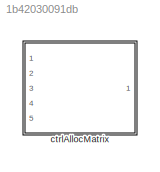
MODEL slx_1b42030091db
KIND library
CONFIG AbsTol = auto
CONFIG EnableMultiTasking = off
CONFIG FixedStep = auto
CONFIG MaxStep = auto
CONFIG MinStep = auto
CONFIG RelTol = 1e-3
CONFIG SampleTimeConstraint = Unconstrained
CONFIG Solver = VariableStepAuto
CONFIG SolverName = VariableStepAuto
CONFIG StartTime = 0.0
CONFIG StopTime = 10.0
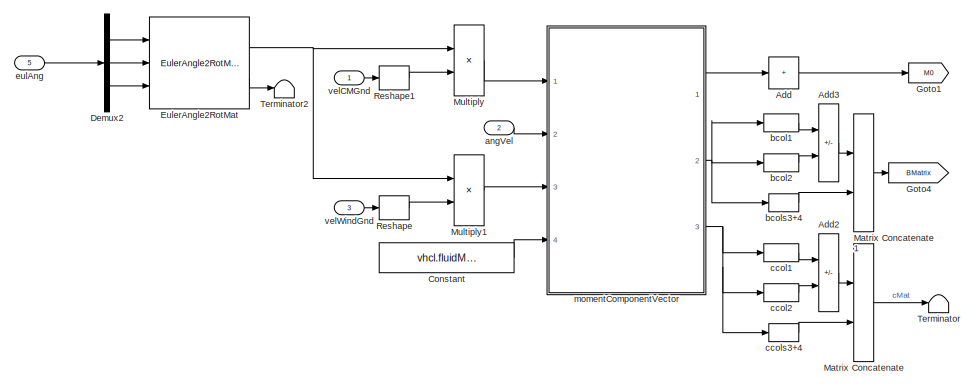
[diagram: ctrlAllocMatrix - part 1/2, left side, full height]
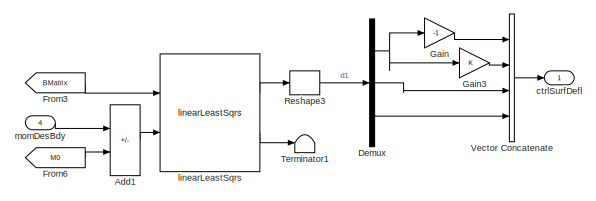
[diagram: ctrlAllocMatrix - part 2/2, middle right region]
BLOCK [SubSystem] ctrlAllocMatrix
  MinAlgLoopOccurrences = on
  Ports = [5, 1]
  RequestExecContextInheritance = off
BLOCK [Sum] ctrlAllocMatrix/Add
  CollapseDim = 2
  CollapseMode = Specified dimension
  IconShape = rectangular
  Inputs = +
  Ports = [1, 1]
BLOCK [Sum] ctrlAllocMatrix/Add1
  IconShape = rectangular
  Inputs = +-
  Ports = [2, 1]
BLOCK [Sum] ctrlAllocMatrix/Add2
  IconShape = rectangular
  Inputs = -+
  Ports = [2, 1]
BLOCK [Sum] ctrlAllocMatrix/Add3
  IconShape = rectangular
  Inputs = -+
  Ports = [2, 1]
BLOCK [Constant] ctrlAllocMatrix/Constant
  Value = vhcl.fluidMomentArms.Value
BLOCK [Demux] ctrlAllocMatrix/Demux
  Outputs = 3
  Ports = [1, 3]
BLOCK [Demux] ctrlAllocMatrix/Demux2
  Outputs = 3
  Ports = [1, 3]
BLOCK [Reference] ctrlAllocMatrix/EulerAngle2RotMat  REF=eulAng2RotMat_ul/EulerAngle2RotMat
  Ports = [3, 2]
  SourceBlock = eulAng2RotMat_ul/EulerAngle2RotMat
  SourceType = SubSystem
BLOCK [From] ctrlAllocMatrix/From3
  GotoTag = BMatrix
BLOCK [From] ctrlAllocMatrix/From6
  GotoTag = M0
BLOCK [Gain] ctrlAllocMatrix/Gain
  Gain = -1
BLOCK [Gain] ctrlAllocMatrix/Gain3
BLOCK [Goto] ctrlAllocMatrix/Goto1
  GotoTag = M0
BLOCK [Goto] ctrlAllocMatrix/Goto4
  GotoTag = BMatrix
BLOCK [Concatenate] ctrlAllocMatrix/Matrix Concatenate
  ConcatenateDimension = 2
  Mode = Multidimensional array
  Ports = [2, 1]
BLOCK [Concatenate] ctrlAllocMatrix/Matrix Concatenate1
  ConcatenateDimension = 2
  Mode = Multidimensional array
  Ports = [2, 1]
BLOCK [Product] ctrlAllocMatrix/Multiply
  Multiplication = Matrix(*)
  Ports = [2, 1]
BLOCK [Product] ctrlAllocMatrix/Multiply1
  Multiplication = Matrix(*)
  Ports = [2, 1]
BLOCK [Reshape] ctrlAllocMatrix/Reshape
  OutputDimensionality = Column vector (2-D)
  Ports = [1, 1]
BLOCK [Reshape] ctrlAllocMatrix/Reshape1
  OutputDimensionality = Column vector (2-D)
  Ports = [1, 1]
BLOCK [Reshape] ctrlAllocMatrix/Reshape3
  Ports = [1, 1]
BLOCK [Terminator] ctrlAllocMatrix/Terminator
BLOCK [Terminator] ctrlAllocMatrix/Terminator1
BLOCK [Terminator] ctrlAllocMatrix/Terminator2
BLOCK [Concatenate] ctrlAllocMatrix/Vector Concatenate
  NumInputs = 4
  Ports = [4, 1]
BLOCK [Inport] ctrlAllocMatrix/angVel
  Port = 2
BLOCK [Selector] ctrlAllocMatrix/bcol1
  IndexOptions = Select all,Index vector (dialog)
  Indices = [1 3],1
  InputPortWidth = 3
  NumberOfDimensions = 2
  OutputSizes = 1,1
  Ports = [1, 1]
BLOCK [Selector] ctrlAllocMatrix/bcol2
  IndexOptions = Select all,Index vector (dialog)
  Indices = [1 3],2
  InputPortWidth = 3
  NumberOfDimensions = 2
  OutputSizes = 1,1
  Ports = [1, 1]
BLOCK [Selector] ctrlAllocMatrix/bcols3+4
  IndexOptions = Select all,Index vector (dialog)
  Indices = [1 3],[3 4]
  InputPortWidth = 3
  NumberOfDimensions = 2
  OutputSizes = 1,1
  Ports = [1, 1]
BLOCK [Selector] ctrlAllocMatrix/ccol1
  IndexOptions = Select all,Index vector (dialog)
  Indices = [1 3],1
  InputPortWidth = 3
  NumberOfDimensions = 2
  OutputSizes = 1,1
  Ports = [1, 1]
BLOCK [Selector] ctrlAllocMatrix/ccol2
  IndexOptions = Select all,Index vector (dialog)
  Indices = [1 3],2
  InputPortWidth = 3
  NumberOfDimensions = 2
  OutputSizes = 1,1
  Ports = [1, 1]
BLOCK [Selector] ctrlAllocMatrix/ccols3+4
  IndexOptions = Select all,Index vector (dialog)
  Indices = [1 3],[3 4]
  InputPortWidth = 3
  NumberOfDimensions = 2
  OutputSizes = 1,1
  Ports = [1, 1]
BLOCK [Outport] ctrlAllocMatrix/ctrlSurfDefl
  VectorParamsAs1DForOutWhenUnconnected = off
BLOCK [Inport] ctrlAllocMatrix/eulAng
  Port = 5
BLOCK [Reference] ctrlAllocMatrix/linearLeastSqrs  REF=linearLeastSqrs_ul/linearLeastSqrs
  Ports = [2, 2]
  SourceBlock = linearLeastSqrs_ul/linearLeastSqrs
  SourceType = SubSystem
BLOCK [Inport] ctrlAllocMatrix/momDesBdy
  Port = 4
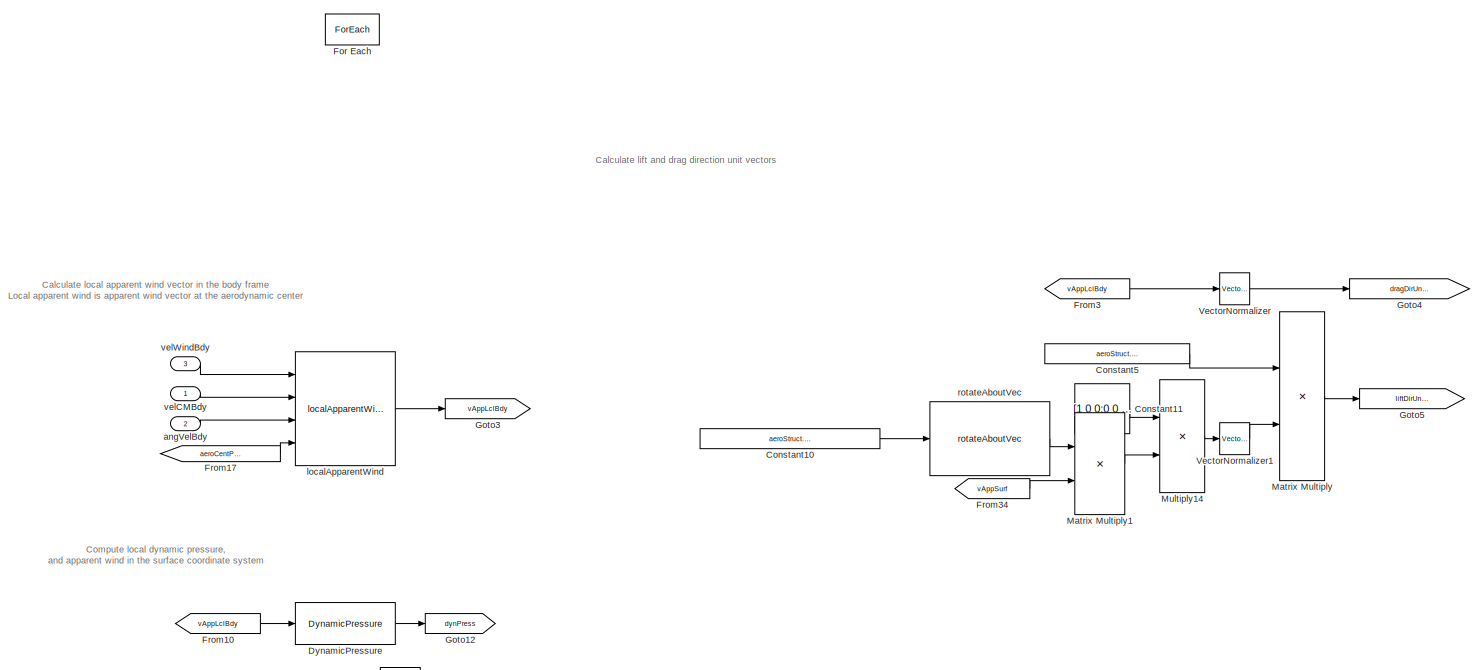
[diagram: ctrlAllocMatrix/momentComponentVector - part 1/4, top center region]
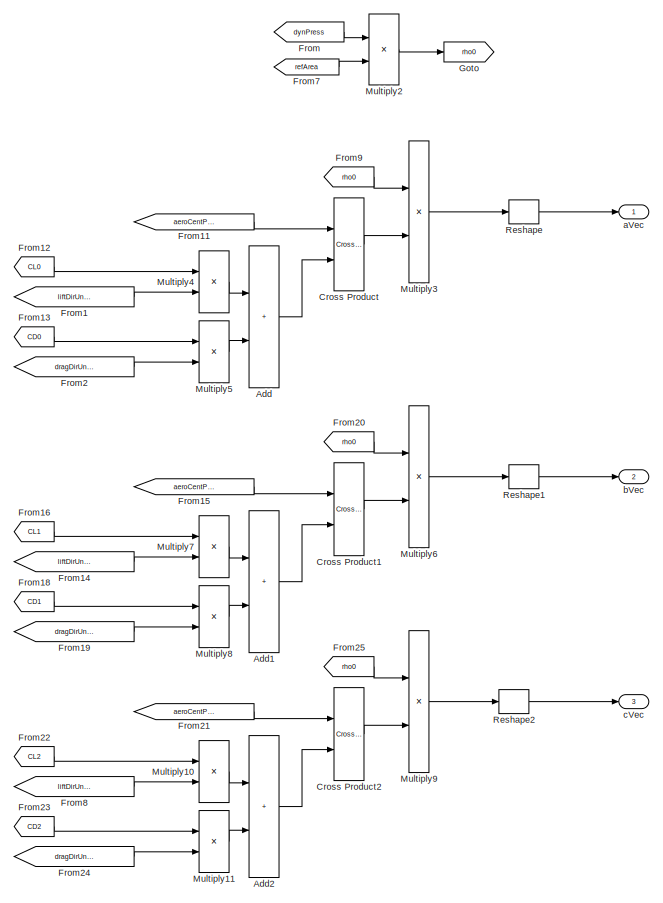
[diagram: ctrlAllocMatrix/momentComponentVector - part 2/4, middle right region]
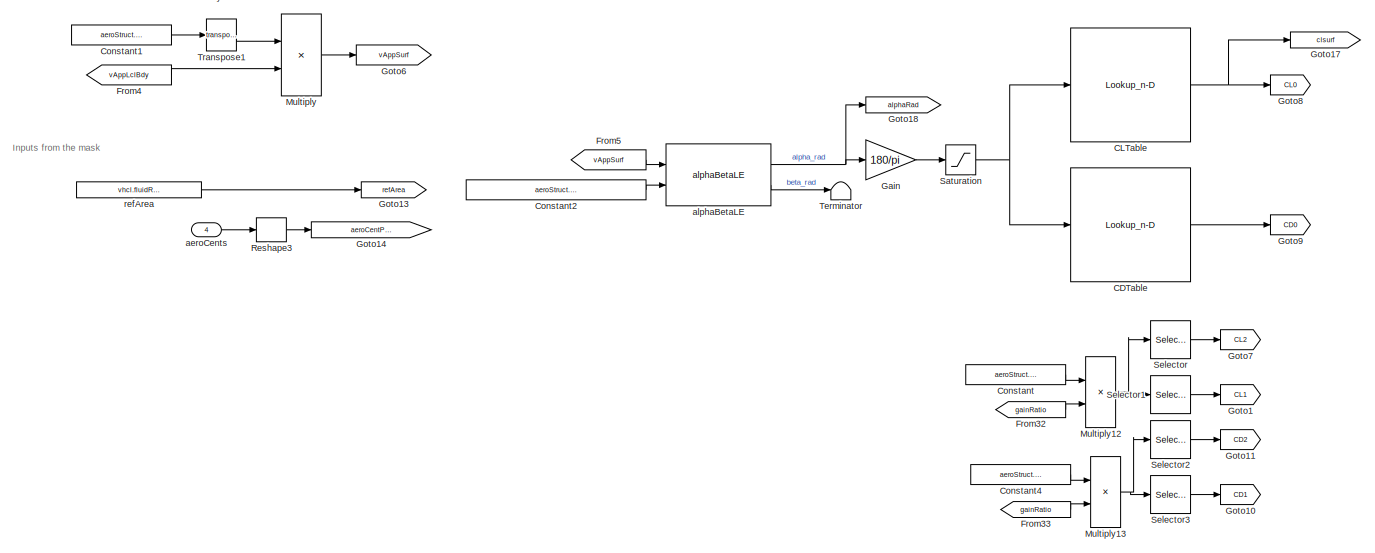
[diagram: ctrlAllocMatrix/momentComponentVector - part 3/4, central region]
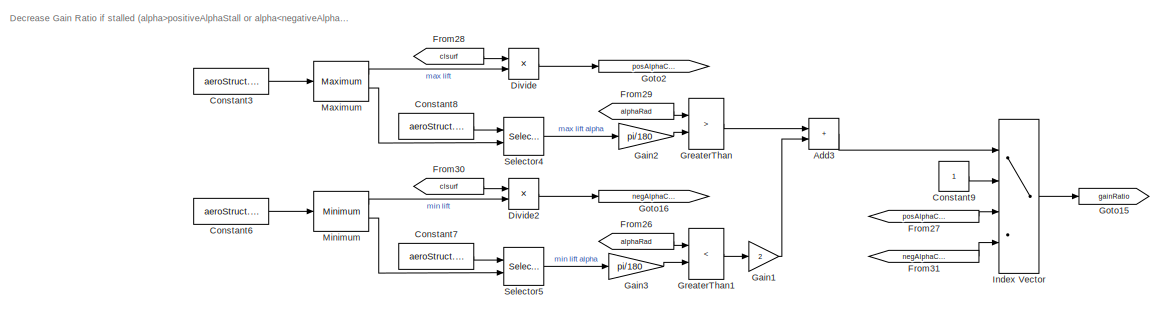
[diagram: ctrlAllocMatrix/momentComponentVector - part 4/4, bottom right region]
BLOCK [SubSystem] ctrlAllocMatrix/momentComponentVector
  Ports = [4, 3]
  RequestExecContextInheritance = off
BLOCK [Sum] ctrlAllocMatrix/momentComponentVector/Add
  IconShape = rectangular
  Ports = [2, 1]
BLOCK [Sum] ctrlAllocMatrix/momentComponentVector/Add1
  IconShape = rectangular
  Ports = [2, 1]
BLOCK [Sum] ctrlAllocMatrix/momentComponentVector/Add2
  IconShape = rectangular
  Ports = [2, 1]
BLOCK [Sum] ctrlAllocMatrix/momentComponentVector/Add3
  IconShape = rectangular
  Ports = [2, 1]
BLOCK [Lookup_n-D] ctrlAllocMatrix/momentComponentVector/CDTable
  BreakpointsForDimension1 = aeroStruct.alpha
  ExtrapMethod = Clip
  InternalRulePriority = Speed
  LookupTableObject = CLTable
  NumberOfTableDimensions = 1
  Ports = [1, 1]
  RndMeth = Simplest
  Table = aeroStruct.CD
  UseLastTableValue = on
BLOCK [Lookup_n-D] ctrlAllocMatrix/momentComponentVector/CLTable
  BreakpointsForDimension1 = aeroStruct.alpha
  ExtrapMethod = Clip
  InternalRulePriority = Speed
  LookupTableObject = CLTable
  NumberOfTableDimensions = 1
  Ports = [1, 1]
  RndMeth = Simplest
  Table = aeroStruct.CL
  UseLastTableValue = on
BLOCK [Constant] ctrlAllocMatrix/momentComponentVector/Constant
  NameLocation = top
  Value = aeroStruct.gainCL
BLOCK [Constant] ctrlAllocMatrix/momentComponentVector/Constant1
  Value = aeroStruct.RSurf2Bdy
BLOCK [Constant] ctrlAllocMatrix/momentComponentVector/Constant10
  Value = aeroStruct.incAlphaUnitVecSurf
BLOCK [Constant] ctrlAllocMatrix/momentComponentVector/Constant11
  Value = [1 0 0;0 0 0;0 0 1]
BLOCK [Constant] ctrlAllocMatrix/momentComponentVector/Constant2
  Value = aeroStruct.incAlphaUnitVecSurf
BLOCK [Constant] ctrlAllocMatrix/momentComponentVector/Constant3
  Value = aeroStruct.CL
BLOCK [Constant] ctrlAllocMatrix/momentComponentVector/Constant4
  NameLocation = top
  Value = aeroStruct.gainCD
BLOCK [Constant] ctrlAllocMatrix/momentComponentVector/Constant5
  Value = aeroStruct.RSurf2Bdy
BLOCK [Constant] ctrlAllocMatrix/momentComponentVector/Constant6
  Value = aeroStruct.CL
BLOCK [Constant] ctrlAllocMatrix/momentComponentVector/Constant7
  Value = aeroStruct.alpha
BLOCK [Constant] ctrlAllocMatrix/momentComponentVector/Constant8
  Value = aeroStruct.alpha
BLOCK [Constant] ctrlAllocMatrix/momentComponentVector/Constant9
BLOCK [Reference] ctrlAllocMatrix/momentComponentVector/Cross Product  REF=vrlib/Utilities/Cross Product
  Ports = [2, 1]
  SourceBlock = vrlib/Utilities/Cross Product
  SourceProductBaseCode = SL
  SourceType = Cross Product
BLOCK [Reference] ctrlAllocMatrix/momentComponentVector/Cross Product1  REF=vrlib/Utilities/Cross Product
  Ports = [2, 1]
  SourceBlock = vrlib/Utilities/Cross Product
  SourceProductBaseCode = SL
  SourceType = Cross Product
BLOCK [Reference] ctrlAllocMatrix/momentComponentVector/Cross Product2  REF=vrlib/Utilities/Cross Product
  Ports = [2, 1]
  SourceBlock = vrlib/Utilities/Cross Product
  SourceProductBaseCode = SL
  SourceType = Cross Product
BLOCK [Product] ctrlAllocMatrix/momentComponentVector/Divide
  Inputs = */
  Ports = [2, 1]
BLOCK [Product] ctrlAllocMatrix/momentComponentVector/Divide2
  Inputs = */
  Ports = [2, 1]
BLOCK [Reference] ctrlAllocMatrix/momentComponentVector/DynamicPressure  REF=dynamicPressure_ul/DynamicPressure
  Ports = [1, 1]
  SourceBlock = dynamicPressure_ul/DynamicPressure
BLOCK [ForEach] ctrlAllocMatrix/momentComponentVector/For Each
  DisableCoverage = on
  IterateSubsysMaskParameter = on,off
  Ports = []
  SubsysMaskParameterIterationDimension = 2,1
BLOCK [From] ctrlAllocMatrix/momentComponentVector/From
  GotoTag = dynPress
BLOCK [From] ctrlAllocMatrix/momentComponentVector/From1
  GotoTag = liftDirUnitVecBdy
BLOCK [From] ctrlAllocMatrix/momentComponentVector/From10
  GotoTag = vAppLclBdy
BLOCK [From] ctrlAllocMatrix/momentComponentVector/From11
  GotoTag = aeroCentPosVecBdy
BLOCK [From] ctrlAllocMatrix/momentComponentVector/From12
  GotoTag = CL0
BLOCK [From] ctrlAllocMatrix/momentComponentVector/From13
  GotoTag = CD0
BLOCK [From] ctrlAllocMatrix/momentComponentVector/From14
  GotoTag = liftDirUnitVecBdy
BLOCK [From] ctrlAllocMatrix/momentComponentVector/From15
  GotoTag = aeroCentPosVecBdy
BLOCK [From] ctrlAllocMatrix/momentComponentVector/From16
  GotoTag = CL1
BLOCK [From] ctrlAllocMatrix/momentComponentVector/From17
  GotoTag = aeroCentPosVecBdy
BLOCK [From] ctrlAllocMatrix/momentComponentVector/From18
  GotoTag = CD1
BLOCK [From] ctrlAllocMatrix/momentComponentVector/From19
  GotoTag = dragDirUnitVecBdy
BLOCK [From] ctrlAllocMatrix/momentComponentVector/From2
  GotoTag = dragDirUnitVecBdy
BLOCK [From] ctrlAllocMatrix/momentComponentVector/From20
  GotoTag = rho0
BLOCK [From] ctrlAllocMatrix/momentComponentVector/From21
  GotoTag = aeroCentPosVecBdy
BLOCK [From] ctrlAllocMatrix/momentComponentVector/From22
  GotoTag = CL2
BLOCK [From] ctrlAllocMatrix/momentComponentVector/From23
  GotoTag = CD2
BLOCK [From] ctrlAllocMatrix/momentComponentVector/From24
  GotoTag = dragDirUnitVecBdy
BLOCK [From] ctrlAllocMatrix/momentComponentVector/From25
  GotoTag = rho0
BLOCK [From] ctrlAllocMatrix/momentComponentVector/From26
  GotoTag = alphaRad
BLOCK [From] ctrlAllocMatrix/momentComponentVector/From27
  GotoTag = posAlphaCLRatio
BLOCK [From] ctrlAllocMatrix/momentComponentVector/From28
  GotoTag = clsurf
BLOCK [From] ctrlAllocMatrix/momentComponentVector/From29
  GotoTag = alphaRad
BLOCK [From] ctrlAllocMatrix/momentComponentVector/From3
  GotoTag = vAppLclBdy
BLOCK [From] ctrlAllocMatrix/momentComponentVector/From30
  GotoTag = clsurf
BLOCK [From] ctrlAllocMatrix/momentComponentVector/From31
  GotoTag = negAlphaCLRatio
BLOCK [From] ctrlAllocMatrix/momentComponentVector/From32
  GotoTag = gainRatio
BLOCK [From] ctrlAllocMatrix/momentComponentVector/From33
  GotoTag = gainRatio
BLOCK [From] ctrlAllocMatrix/momentComponentVector/From34
  GotoTag = vAppSurf
BLOCK [From] ctrlAllocMatrix/momentComponentVector/From4
  GotoTag = vAppLclBdy
BLOCK [From] ctrlAllocMatrix/momentComponentVector/From5
  GotoTag = vAppSurf
BLOCK [From] ctrlAllocMatrix/momentComponentVector/From7
  GotoTag = refArea
BLOCK [From] ctrlAllocMatrix/momentComponentVector/From8
  GotoTag = liftDirUnitVecBdy
BLOCK [From] ctrlAllocMatrix/momentComponentVector/From9
  GotoTag = rho0
BLOCK [Gain] ctrlAllocMatrix/momentComponentVector/Gain
  Gain = 180/pi
BLOCK [Gain] ctrlAllocMatrix/momentComponentVector/Gain1
  Gain = 2
BLOCK [Gain] ctrlAllocMatrix/momentComponentVector/Gain2
  Gain = pi/180
BLOCK [Gain] ctrlAllocMatrix/momentComponentVector/Gain3
  Gain = pi/180
BLOCK [Goto] ctrlAllocMatrix/momentComponentVector/Goto
  GotoTag = rho0
BLOCK [Goto] ctrlAllocMatrix/momentComponentVector/Goto1
  GotoTag = CL1
BLOCK [Goto] ctrlAllocMatrix/momentComponentVector/Goto10
  GotoTag = CD1
BLOCK [Goto] ctrlAllocMatrix/momentComponentVector/Goto11
  GotoTag = CD2
BLOCK [Goto] ctrlAllocMatrix/momentComponentVector/Goto12
  GotoTag = dynPress
BLOCK [Goto] ctrlAllocMatrix/momentComponentVector/Goto13
  GotoTag = refArea
BLOCK [Goto] ctrlAllocMatrix/momentComponentVector/Goto14
  GotoTag = aeroCentPosVecBdy
BLOCK [Goto] ctrlAllocMatrix/momentComponentVector/Goto15
  GotoTag = gainRatio
BLOCK [Goto] ctrlAllocMatrix/momentComponentVector/Goto16
  GotoTag = negAlphaCLRatio
BLOCK [Goto] ctrlAllocMatrix/momentComponentVector/Goto17
  GotoTag = clsurf
BLOCK [Goto] ctrlAllocMatrix/momentComponentVector/Goto18
  GotoTag = alphaRad
BLOCK [Goto] ctrlAllocMatrix/momentComponentVector/Goto2
  GotoTag = posAlphaCLRatio
BLOCK [Goto] ctrlAllocMatrix/momentComponentVector/Goto3
  GotoTag = vAppLclBdy
BLOCK [Goto] ctrlAllocMatrix/momentComponentVector/Goto4
  GotoTag = dragDirUnitVecBdy
BLOCK [Goto] ctrlAllocMatrix/momentComponentVector/Goto5
  GotoTag = liftDirUnitVecBdy
BLOCK [Goto] ctrlAllocMatrix/momentComponentVector/Goto6
  GotoTag = vAppSurf
BLOCK [Goto] ctrlAllocMatrix/momentComponentVector/Goto7
  GotoTag = CL2
BLOCK [Goto] ctrlAllocMatrix/momentComponentVector/Goto8
  GotoTag = CL0
BLOCK [Goto] ctrlAllocMatrix/momentComponentVector/Goto9
  GotoTag = CD0
BLOCK [RelationalOperator] ctrlAllocMatrix/momentComponentVector/GreaterThan
  InputSameDT = off
  Operator = >
  OutDataTypeStr = boolean
  Ports = [2, 1]
  RndMeth = Simplest
BLOCK [RelationalOperator] ctrlAllocMatrix/momentComponentVector/GreaterThan1
  InputSameDT = off
  Operator = <
  OutDataTypeStr = boolean
  Ports = [2, 1]
  RndMeth = Simplest
BLOCK [MultiPortSwitch] ctrlAllocMatrix/momentComponentVector/Index Vector
  DataPortOrder = Zero-based contiguous
  InputSameDT = off
  Ports = [4, 1]
  SaturateOnIntegerOverflow = off
  zeroidx = on
BLOCK [Product] ctrlAllocMatrix/momentComponentVector/Matrix Multiply
  Multiplication = Matrix(*)
  Ports = [2, 1]
BLOCK [Product] ctrlAllocMatrix/momentComponentVector/Matrix Multiply1
  Multiplication = Matrix(*)
  Ports = [2, 1]
BLOCK [Reference] ctrlAllocMatrix/momentComponentVector/Maximum  REF=dspstat3/Maximum
  Ports = [1, 2]
  SourceBlock = dspstat3/Maximum
  SourceProductBaseCode = DS
  SourceType = Maximum
  UserDataPersistent = on
BLOCK [Reference] ctrlAllocMatrix/momentComponentVector/Minimum  REF=dspstat3/Minimum
  Ports = [1, 2]
  SourceBlock = dspstat3/Minimum
  SourceProductBaseCode = DS
  SourceType = Minimum
  UserDataPersistent = on
BLOCK [Product] ctrlAllocMatrix/momentComponentVector/Multiply
  Multiplication = Matrix(*)
  Ports = [2, 1]
BLOCK [Product] ctrlAllocMatrix/momentComponentVector/Multiply10
  Ports = [2, 1]
BLOCK [Product] ctrlAllocMatrix/momentComponentVector/Multiply11
  Ports = [2, 1]
BLOCK [Product] ctrlAllocMatrix/momentComponentVector/Multiply12
  Ports = [2, 1]
BLOCK [Product] ctrlAllocMatrix/momentComponentVector/Multiply13
  Ports = [2, 1]
BLOCK [Product] ctrlAllocMatrix/momentComponentVector/Multiply14
  Multiplication = Matrix(*)
  Ports = [2, 1]
BLOCK [Product] ctrlAllocMatrix/momentComponentVector/Multiply2
  Ports = [2, 1]
BLOCK [Product] ctrlAllocMatrix/momentComponentVector/Multiply3
  Ports = [2, 1]
BLOCK [Product] ctrlAllocMatrix/momentComponentVector/Multiply4
  Ports = [2, 1]
BLOCK [Product] ctrlAllocMatrix/momentComponentVector/Multiply5
  Ports = [2, 1]
BLOCK [Product] ctrlAllocMatrix/momentComponentVector/Multiply6
  Ports = [2, 1]
BLOCK [Product] ctrlAllocMatrix/momentComponentVector/Multiply7
  Ports = [2, 1]
BLOCK [Product] ctrlAllocMatrix/momentComponentVector/Multiply8
  Ports = [2, 1]
BLOCK [Product] ctrlAllocMatrix/momentComponentVector/Multiply9
  Ports = [2, 1]
BLOCK [Reshape] ctrlAllocMatrix/momentComponentVector/Reshape
  OutputDimensionality = Column vector (2-D)
  Ports = [1, 1]
BLOCK [Reshape] ctrlAllocMatrix/momentComponentVector/Reshape1
  OutputDimensionality = Column vector (2-D)
  Ports = [1, 1]
BLOCK [Reshape] ctrlAllocMatrix/momentComponentVector/Reshape2
  OutputDimensionality = Column vector (2-D)
  Ports = [1, 1]
BLOCK [Reshape] ctrlAllocMatrix/momentComponentVector/Reshape3
  OutputDimensionality = Column vector (2-D)
  Ports = [1, 1]
BLOCK [Saturate] ctrlAllocMatrix/momentComponentVector/Saturation
  LowerLimit = -90
  UpperLimit = 90
BLOCK [Selector] ctrlAllocMatrix/momentComponentVector/Selector
  IndexOptions = Index vector (dialog)
  Indices = 1
  InputPortWidth = 3
  OutputSizes = 1
  Ports = [1, 1]
BLOCK [Selector] ctrlAllocMatrix/momentComponentVector/Selector1
  IndexOptions = Index vector (dialog)
  Indices = 2
  InputPortWidth = 3
  OutputSizes = 1
  Ports = [1, 1]
BLOCK [Selector] ctrlAllocMatrix/momentComponentVector/Selector2
  IndexOptions = Index vector (dialog)
  Indices = 1
  InputPortWidth = 3
  OutputSizes = 1
  Ports = [1, 1]
BLOCK [Selector] ctrlAllocMatrix/momentComponentVector/Selector3
  IndexOptions = Index vector (dialog)
  Indices = 2
  InputPortWidth = 3
  OutputSizes = 1
  Ports = [1, 1]
BLOCK [Selector] ctrlAllocMatrix/momentComponentVector/Selector4
  IndexOptions = Index vector (port)
  Indices = [1 3]
  InputPortWidth = length(vhcl.portWing.alpha.Value)
  OutputSizes = 1
  Ports = [2, 1]
BLOCK [Selector] ctrlAllocMatrix/momentComponentVector/Selector5
  IndexOptions = Index vector (port)
  Indices = [1 3]
  InputPortWidth = length(vhcl.portWing.alpha.Value)
  OutputSizes = 1
  Ports = [2, 1]
BLOCK [Terminator] ctrlAllocMatrix/momentComponentVector/Terminator
BLOCK [Math] ctrlAllocMatrix/momentComponentVector/Transpose1
  Operator = transpose
  Ports = [1, 1]
  SignedPower = on
BLOCK [Reference] ctrlAllocMatrix/momentComponentVector/VectorNormalizer   REF=vectorNormalizer_ul/VectorNormalizer

  Ports = [1, 1]
  SourceBlock = vectorNormalizer_ul/VectorNormalizer
  SourceType = SubSystem
BLOCK [Reference] ctrlAllocMatrix/momentComponentVector/VectorNormalizer1  REF=vectorNormalizer_ul/VectorNormalizer

  Ports = [1, 1]
  SourceBlock = vectorNormalizer_ul/VectorNormalizer
  SourceType = SubSystem
BLOCK [Outport] ctrlAllocMatrix/momentComponentVector/aVec
  ConcatenationDimension = 2
  PortDimensions = [3 1]
  VectorParamsAs1DForOutWhenUnconnected = off
BLOCK [Inport] ctrlAllocMatrix/momentComponentVector/aeroCents
  Partition = on
  PartitionDimension = 2
  PartitionOffset = 0
  PartitionWidth = 1
  Port = 4
BLOCK [Reference] ctrlAllocMatrix/momentComponentVector/alphaBetaLE  REF=alphaBetaLE_ul/alphaBetaLE
  Ports = [2, 2]
  SourceBlock = alphaBetaLE_ul/alphaBetaLE
  SourceType = SubSystem
BLOCK [Inport] ctrlAllocMatrix/momentComponentVector/angVelBdy
  Port = 2
BLOCK [Outport] ctrlAllocMatrix/momentComponentVector/bVec
  ConcatenationDimension = 2
  Port = 2
  PortDimensions = [3 1]
  VectorParamsAs1DForOutWhenUnconnected = off
BLOCK [Outport] ctrlAllocMatrix/momentComponentVector/cVec
  ConcatenationDimension = 2
  Port = 3
  PortDimensions = [3 1]
  VectorParamsAs1DForOutWhenUnconnected = off
BLOCK [Reference] ctrlAllocMatrix/momentComponentVector/localApparentWind  REF=localApparentWind_ul/localApparentWind
  Ports = [4, 1]
  SourceBlock = localApparentWind_ul/localApparentWind
  SourceType = SubSystem
BLOCK [Constant] ctrlAllocMatrix/momentComponentVector/refArea
  Value = vhcl.fluidRefArea.Value
BLOCK [Reference] ctrlAllocMatrix/momentComponentVector/rotateAboutVec  REF=rotateAboutVec/rotateAboutVec
  Ports = [1, 1]
  SourceBlock = rotateAboutVec/rotateAboutVec
BLOCK [Inport] ctrlAllocMatrix/momentComponentVector/velCMBdy
BLOCK [Inport] ctrlAllocMatrix/momentComponentVector/velWindBdy
  Port = 3
BLOCK [Inport] ctrlAllocMatrix/velCMGnd
BLOCK [Inport] ctrlAllocMatrix/velWindGnd
  Port = 3
ANNOTATION ctrlAllocMatrix/momentComponentVector: Calculate lift and drag direction unit vectors
ANNOTATION ctrlAllocMatrix/momentComponentVector: Calculate local apparent wind vector in the body frame Local apparent wind is apparent wind vector at the aerodynamic center
ANNOTATION ctrlAllocMatrix/momentComponentVector: Compute local dynamic pressure, and apparent wind in the surface coordinate system
ANNOTATION ctrlAllocMatrix/momentComponentVector: Decrease Gain Ratio if stalled (alpha>positiveAlphaStall or alpha<negativeAlphaStall)
ANNOTATION ctrlAllocMatrix/momentComponentVector: Inputs from the mask
LINE ctrlAllocMatrix/Add1:1 -> ctrlAllocMatrix/linearLeastSqrs:2
LINE ctrlAllocMatrix/Add2:1 -> ctrlAllocMatrix/Matrix Concatenate:1
LINE ctrlAllocMatrix/Add3:1 -> ctrlAllocMatrix/Matrix Concatenate1:1
LINE ctrlAllocMatrix/Add:1 -> ctrlAllocMatrix/Goto1:1
LINE ctrlAllocMatrix/Constant:1 -> ctrlAllocMatrix/momentComponentVector:4
LINE ctrlAllocMatrix/Demux2:1 -> ctrlAllocMatrix/EulerAngle2RotMat:1
LINE ctrlAllocMatrix/Demux2:2 -> ctrlAllocMatrix/EulerAngle2RotMat:2
LINE ctrlAllocMatrix/Demux2:3 -> ctrlAllocMatrix/EulerAngle2RotMat:3
NET ctrlAllocMatrix/Demux:1 -> ctrlAllocMatrix/Gain3:1, ctrlAllocMatrix/Gain:1
LINE ctrlAllocMatrix/Demux:2 -> ctrlAllocMatrix/Vector Concatenate:3
LINE ctrlAllocMatrix/Demux:3 -> ctrlAllocMatrix/Vector Concatenate:4
NET ctrlAllocMatrix/EulerAngle2RotMat:1 -> ctrlAllocMatrix/Multiply1:1, ctrlAllocMatrix/Multiply:1
LINE ctrlAllocMatrix/EulerAngle2RotMat:2 -> ctrlAllocMatrix/Terminator2:1
LINE ctrlAllocMatrix/From3:1 -> ctrlAllocMatrix/linearLeastSqrs:1
LINE ctrlAllocMatrix/From6:1 -> ctrlAllocMatrix/Add1:2
LINE ctrlAllocMatrix/Gain3:1 -> ctrlAllocMatrix/Vector Concatenate:2
LINE ctrlAllocMatrix/Gain:1 -> ctrlAllocMatrix/Vector Concatenate:1
LINE ctrlAllocMatrix/Matrix Concatenate1:1 -> ctrlAllocMatrix/Goto4:1
LINE ctrlAllocMatrix/Matrix Concatenate:1 -> ctrlAllocMatrix/Terminator:1
LINE ctrlAllocMatrix/Multiply1:1 -> ctrlAllocMatrix/momentComponentVector:3
LINE ctrlAllocMatrix/Multiply:1 -> ctrlAllocMatrix/momentComponentVector:1
LINE ctrlAllocMatrix/Reshape1:1 -> ctrlAllocMatrix/Multiply:2
LINE ctrlAllocMatrix/Reshape3:1 -> ctrlAllocMatrix/Demux:1
LINE ctrlAllocMatrix/Reshape:1 -> ctrlAllocMatrix/Multiply1:2
LINE ctrlAllocMatrix/Vector Concatenate:1 -> ctrlAllocMatrix/ctrlSurfDefl:1
LINE ctrlAllocMatrix/angVel:1 -> ctrlAllocMatrix/momentComponentVector:2
LINE ctrlAllocMatrix/bcol1:1 -> ctrlAllocMatrix/Add3:1
LINE ctrlAllocMatrix/bcol2:1 -> ctrlAllocMatrix/Add3:2
LINE ctrlAllocMatrix/bcols3+4:1 -> ctrlAllocMatrix/Matrix Concatenate1:2
LINE ctrlAllocMatrix/ccol1:1 -> ctrlAllocMatrix/Add2:1
LINE ctrlAllocMatrix/ccol2:1 -> ctrlAllocMatrix/Add2:2
LINE ctrlAllocMatrix/ccols3+4:1 -> ctrlAllocMatrix/Matrix Concatenate:2
LINE ctrlAllocMatrix/eulAng:1 -> ctrlAllocMatrix/Demux2:1
LINE ctrlAllocMatrix/linearLeastSqrs:1 -> ctrlAllocMatrix/Reshape3:1
LINE ctrlAllocMatrix/linearLeastSqrs:2 -> ctrlAllocMatrix/Terminator1:1
LINE ctrlAllocMatrix/momDesBdy:1 -> ctrlAllocMatrix/Add1:1
LINE ctrlAllocMatrix/momentComponentVector/Add1:1 -> ctrlAllocMatrix/momentComponentVector/Cross Product1:2
LINE ctrlAllocMatrix/momentComponentVector/Add2:1 -> ctrlAllocMatrix/momentComponentVector/Cross Product2:2
LINE ctrlAllocMatrix/momentComponentVector/Add3:1 -> ctrlAllocMatrix/momentComponentVector/Index Vector:1
LINE ctrlAllocMatrix/momentComponentVector/Add:1 -> ctrlAllocMatrix/momentComponentVector/Cross Product:2
LINE ctrlAllocMatrix/momentComponentVector/CDTable:1 -> ctrlAllocMatrix/momentComponentVector/Goto9:1
NET ctrlAllocMatrix/momentComponentVector/CLTable:1 -> ctrlAllocMatrix/momentComponentVector/Goto17:1, ctrlAllocMatrix/momentComponentVector/Goto8:1
LINE ctrlAllocMatrix/momentComponentVector/Constant10:1 -> ctrlAllocMatrix/momentComponentVector/rotateAboutVec:1
LINE ctrlAllocMatrix/momentComponentVector/Constant11:1 -> ctrlAllocMatrix/momentComponentVector/Multiply14:1
LINE ctrlAllocMatrix/momentComponentVector/Constant1:1 -> ctrlAllocMatrix/momentComponentVector/Transpose1:1
LINE ctrlAllocMatrix/momentComponentVector/Constant2:1 -> ctrlAllocMatrix/momentComponentVector/alphaBetaLE:2
LINE ctrlAllocMatrix/momentComponentVector/Constant3:1 -> ctrlAllocMatrix/momentComponentVector/Maximum:1
LINE ctrlAllocMatrix/momentComponentVector/Constant4:1 -> ctrlAllocMatrix/momentComponentVector/Multiply13:1
LINE ctrlAllocMatrix/momentComponentVector/Constant5:1 -> ctrlAllocMatrix/momentComponentVector/Matrix Multiply:1
LINE ctrlAllocMatrix/momentComponentVector/Constant6:1 -> ctrlAllocMatrix/momentComponentVector/Minimum:1
LINE ctrlAllocMatrix/momentComponentVector/Constant7:1 -> ctrlAllocMatrix/momentComponentVector/Selector5:1
LINE ctrlAllocMatrix/momentComponentVector/Constant8:1 -> ctrlAllocMatrix/momentComponentVector/Selector4:1
LINE ctrlAllocMatrix/momentComponentVector/Constant9:1 -> ctrlAllocMatrix/momentComponentVector/Index Vector:2
LINE ctrlAllocMatrix/momentComponentVector/Constant:1 -> ctrlAllocMatrix/momentComponentVector/Multiply12:1
LINE ctrlAllocMatrix/momentComponentVector/Cross Product1:1 -> ctrlAllocMatrix/momentComponentVector/Multiply6:2
LINE ctrlAllocMatrix/momentComponentVector/Cross Product2:1 -> ctrlAllocMatrix/momentComponentVector/Multiply9:2
LINE ctrlAllocMatrix/momentComponentVector/Cross Product:1 -> ctrlAllocMatrix/momentComponentVector/Multiply3:2
LINE ctrlAllocMatrix/momentComponentVector/Divide2:1 -> ctrlAllocMatrix/momentComponentVector/Goto16:1
LINE ctrlAllocMatrix/momentComponentVector/Divide:1 -> ctrlAllocMatrix/momentComponentVector/Goto2:1
LINE ctrlAllocMatrix/momentComponentVector/DynamicPressure:1 -> ctrlAllocMatrix/momentComponentVector/Goto12:1
LINE ctrlAllocMatrix/momentComponentVector/From10:1 -> ctrlAllocMatrix/momentComponentVector/DynamicPressure:1
LINE ctrlAllocMatrix/momentComponentVector/From11:1 -> ctrlAllocMatrix/momentComponentVector/Cross Product:1
LINE ctrlAllocMatrix/momentComponentVector/From12:1 -> ctrlAllocMatrix/momentComponentVector/Multiply4:1
LINE ctrlAllocMatrix/momentComponentVector/From13:1 -> ctrlAllocMatrix/momentComponentVector/Multiply5:1
LINE ctrlAllocMatrix/momentComponentVector/From14:1 -> ctrlAllocMatrix/momentComponentVector/Multiply7:2
LINE ctrlAllocMatrix/momentComponentVector/From15:1 -> ctrlAllocMatrix/momentComponentVector/Cross Product1:1
LINE ctrlAllocMatrix/momentComponentVector/From16:1 -> ctrlAllocMatrix/momentComponentVector/Multiply7:1
LINE ctrlAllocMatrix/momentComponentVector/From17:1 -> ctrlAllocMatrix/momentComponentVector/localApparentWind:4
LINE ctrlAllocMatrix/momentComponentVector/From18:1 -> ctrlAllocMatrix/momentComponentVector/Multiply8:1
LINE ctrlAllocMatrix/momentComponentVector/From19:1 -> ctrlAllocMatrix/momentComponentVector/Multiply8:2
LINE ctrlAllocMatrix/momentComponentVector/From1:1 -> ctrlAllocMatrix/momentComponentVector/Multiply4:2
LINE ctrlAllocMatrix/momentComponentVector/From20:1 -> ctrlAllocMatrix/momentComponentVector/Multiply6:1
LINE ctrlAllocMatrix/momentComponentVector/From21:1 -> ctrlAllocMatrix/momentComponentVector/Cross Product2:1
LINE ctrlAllocMatrix/momentComponentVector/From22:1 -> ctrlAllocMatrix/momentComponentVector/Multiply10:1
LINE ctrlAllocMatrix/momentComponentVector/From23:1 -> ctrlAllocMatrix/momentComponentVector/Multiply11:1
LINE ctrlAllocMatrix/momentComponentVector/From24:1 -> ctrlAllocMatrix/momentComponentVector/Multiply11:2
LINE ctrlAllocMatrix/momentComponentVector/From25:1 -> ctrlAllocMatrix/momentComponentVector/Multiply9:1
LINE ctrlAllocMatrix/momentComponentVector/From26:1 -> ctrlAllocMatrix/momentComponentVector/GreaterThan1:1
LINE ctrlAllocMatrix/momentComponentVector/From27:1 -> ctrlAllocMatrix/momentComponentVector/Index Vector:3
LINE ctrlAllocMatrix/momentComponentVector/From28:1 -> ctrlAllocMatrix/momentComponentVector/Divide:1
LINE ctrlAllocMatrix/momentComponentVector/From29:1 -> ctrlAllocMatrix/momentComponentVector/GreaterThan:1
LINE ctrlAllocMatrix/momentComponentVector/From2:1 -> ctrlAllocMatrix/momentComponentVector/Multiply5:2
LINE ctrlAllocMatrix/momentComponentVector/From30:1 -> ctrlAllocMatrix/momentComponentVector/Divide2:1
LINE ctrlAllocMatrix/momentComponentVector/From31:1 -> ctrlAllocMatrix/momentComponentVector/Index Vector:4
LINE ctrlAllocMatrix/momentComponentVector/From32:1 -> ctrlAllocMatrix/momentComponentVector/Multiply12:2
LINE ctrlAllocMatrix/momentComponentVector/From33:1 -> ctrlAllocMatrix/momentComponentVector/Multiply13:2
LINE ctrlAllocMatrix/momentComponentVector/From34:1 -> ctrlAllocMatrix/momentComponentVector/Matrix Multiply1:2
LINE ctrlAllocMatrix/momentComponentVector/From3:1 -> ctrlAllocMatrix/momentComponentVector/VectorNormalizer :1
LINE ctrlAllocMatrix/momentComponentVector/From4:1 -> ctrlAllocMatrix/momentComponentVector/Multiply:2
LINE ctrlAllocMatrix/momentComponentVector/From5:1 -> ctrlAllocMatrix/momentComponentVector/alphaBetaLE:1
LINE ctrlAllocMatrix/momentComponentVector/From7:1 -> ctrlAllocMatrix/momentComponentVector/Multiply2:2
LINE ctrlAllocMatrix/momentComponentVector/From8:1 -> ctrlAllocMatrix/momentComponentVector/Multiply10:2
LINE ctrlAllocMatrix/momentComponentVector/From9:1 -> ctrlAllocMatrix/momentComponentVector/Multiply3:1
LINE ctrlAllocMatrix/momentComponentVector/From:1 -> ctrlAllocMatrix/momentComponentVector/Multiply2:1
LINE ctrlAllocMatrix/momentComponentVector/Gain1:1 -> ctrlAllocMatrix/momentComponentVector/Add3:2
LINE ctrlAllocMatrix/momentComponentVector/Gain2:1 -> ctrlAllocMatrix/momentComponentVector/GreaterThan:2
LINE ctrlAllocMatrix/momentComponentVector/Gain3:1 -> ctrlAllocMatrix/momentComponentVector/GreaterThan1:2
LINE ctrlAllocMatrix/momentComponentVector/Gain:1 -> ctrlAllocMatrix/momentComponentVector/Saturation:1
LINE ctrlAllocMatrix/momentComponentVector/GreaterThan1:1 -> ctrlAllocMatrix/momentComponentVector/Gain1:1
LINE ctrlAllocMatrix/momentComponentVector/GreaterThan:1 -> ctrlAllocMatrix/momentComponentVector/Add3:1
LINE ctrlAllocMatrix/momentComponentVector/Index Vector:1 -> ctrlAllocMatrix/momentComponentVector/Goto15:1
LINE ctrlAllocMatrix/momentComponentVector/Matrix Multiply1:1 -> ctrlAllocMatrix/momentComponentVector/Multiply14:2
LINE ctrlAllocMatrix/momentComponentVector/Matrix Multiply:1 -> ctrlAllocMatrix/momentComponentVector/Goto5:1
LINE ctrlAllocMatrix/momentComponentVector/Maximum:1 -> ctrlAllocMatrix/momentComponentVector/Divide:2
LINE ctrlAllocMatrix/momentComponentVector/Maximum:2 -> ctrlAllocMatrix/momentComponentVector/Selector4:2
LINE ctrlAllocMatrix/momentComponentVector/Minimum:1 -> ctrlAllocMatrix/momentComponentVector/Divide2:2
LINE ctrlAllocMatrix/momentComponentVector/Minimum:2 -> ctrlAllocMatrix/momentComponentVector/Selector5:2
LINE ctrlAllocMatrix/momentComponentVector/Multiply10:1 -> ctrlAllocMatrix/momentComponentVector/Add2:1
LINE ctrlAllocMatrix/momentComponentVector/Multiply11:1 -> ctrlAllocMatrix/momentComponentVector/Add2:2
NET ctrlAllocMatrix/momentComponentVector/Multiply12:1 -> ctrlAllocMatrix/momentComponentVector/Selector1:1, ctrlAllocMatrix/momentComponentVector/Selector:1
NET ctrlAllocMatrix/momentComponentVector/Multiply13:1 -> ctrlAllocMatrix/momentComponentVector/Selector2:1, ctrlAllocMatrix/momentComponentVector/Selector3:1
LINE ctrlAllocMatrix/momentComponentVector/Multiply14:1 -> ctrlAllocMatrix/momentComponentVector/VectorNormalizer1:1
LINE ctrlAllocMatrix/momentComponentVector/Multiply2:1 -> ctrlAllocMatrix/momentComponentVector/Goto:1
LINE ctrlAllocMatrix/momentComponentVector/Multiply3:1 -> ctrlAllocMatrix/momentComponentVector/Reshape:1
LINE ctrlAllocMatrix/momentComponentVector/Multiply4:1 -> ctrlAllocMatrix/momentComponentVector/Add:1
LINE ctrlAllocMatrix/momentComponentVector/Multiply5:1 -> ctrlAllocMatrix/momentComponentVector/Add:2
LINE ctrlAllocMatrix/momentComponentVector/Multiply6:1 -> ctrlAllocMatrix/momentComponentVector/Reshape1:1
LINE ctrlAllocMatrix/momentComponentVector/Multiply7:1 -> ctrlAllocMatrix/momentComponentVector/Add1:1
LINE ctrlAllocMatrix/momentComponentVector/Multiply8:1 -> ctrlAllocMatrix/momentComponentVector/Add1:2
LINE ctrlAllocMatrix/momentComponentVector/Multiply9:1 -> ctrlAllocMatrix/momentComponentVector/Reshape2:1
LINE ctrlAllocMatrix/momentComponentVector/Multiply:1 -> ctrlAllocMatrix/momentComponentVector/Goto6:1
LINE ctrlAllocMatrix/momentComponentVector/Reshape1:1 -> ctrlAllocMatrix/momentComponentVector/bVec:1
LINE ctrlAllocMatrix/momentComponentVector/Reshape2:1 -> ctrlAllocMatrix/momentComponentVector/cVec:1
LINE ctrlAllocMatrix/momentComponentVector/Reshape3:1 -> ctrlAllocMatrix/momentComponentVector/Goto14:1
LINE ctrlAllocMatrix/momentComponentVector/Reshape:1 -> ctrlAllocMatrix/momentComponentVector/aVec:1
NET ctrlAllocMatrix/momentComponentVector/Saturation:1 -> ctrlAllocMatrix/momentComponentVector/CDTable:1, ctrlAllocMatrix/momentComponentVector/CLTable:1
LINE ctrlAllocMatrix/momentComponentVector/Selector1:1 -> ctrlAllocMatrix/momentComponentVector/Goto1:1
LINE ctrlAllocMatrix/momentComponentVector/Selector2:1 -> ctrlAllocMatrix/momentComponentVector/Goto11:1
LINE ctrlAllocMatrix/momentComponentVector/Selector3:1 -> ctrlAllocMatrix/momentComponentVector/Goto10:1
LINE ctrlAllocMatrix/momentComponentVector/Selector4:1 -> ctrlAllocMatrix/momentComponentVector/Gain2:1
LINE ctrlAllocMatrix/momentComponentVector/Selector5:1 -> ctrlAllocMatrix/momentComponentVector/Gain3:1
LINE ctrlAllocMatrix/momentComponentVector/Selector:1 -> ctrlAllocMatrix/momentComponentVector/Goto7:1
LINE ctrlAllocMatrix/momentComponentVector/Transpose1:1 -> ctrlAllocMatrix/momentComponentVector/Multiply:1
LINE ctrlAllocMatrix/momentComponentVector/VectorNormalizer :1 -> ctrlAllocMatrix/momentComponentVector/Goto4:1
LINE ctrlAllocMatrix/momentComponentVector/VectorNormalizer1:1 -> ctrlAllocMatrix/momentComponentVector/Matrix Multiply:2
LINE ctrlAllocMatrix/momentComponentVector/aeroCents:1 -> ctrlAllocMatrix/momentComponentVector/Reshape3:1
NET ctrlAllocMatrix/momentComponentVector/alphaBetaLE:1 -> ctrlAllocMatrix/momentComponentVector/Gain:1, ctrlAllocMatrix/momentComponentVector/Goto18:1
LINE ctrlAllocMatrix/momentComponentVector/alphaBetaLE:2 -> ctrlAllocMatrix/momentComponentVector/Terminator:1
LINE ctrlAllocMatrix/momentComponentVector/angVelBdy:1 -> ctrlAllocMatrix/momentComponentVector/localApparentWind:3
LINE ctrlAllocMatrix/momentComponentVector/localApparentWind:1 -> ctrlAllocMatrix/momentComponentVector/Goto3:1
LINE ctrlAllocMatrix/momentComponentVector/refArea:1 -> ctrlAllocMatrix/momentComponentVector/Goto13:1
LINE ctrlAllocMatrix/momentComponentVector/rotateAboutVec:1 -> ctrlAllocMatrix/momentComponentVector/Matrix Multiply1:1
LINE ctrlAllocMatrix/momentComponentVector/velCMBdy:1 -> ctrlAllocMatrix/momentComponentVector/localApparentWind:2
LINE ctrlAllocMatrix/momentComponentVector/velWindBdy:1 -> ctrlAllocMatrix/momentComponentVector/localApparentWind:1
LINE ctrlAllocMatrix/momentComponentVector:1 -> ctrlAllocMatrix/Add:1
NET ctrlAllocMatrix/momentComponentVector:2 -> ctrlAllocMatrix/bcol1:1, ctrlAllocMatrix/bcol2:1, ctrlAllocMatrix/bcols3+4:1
NET ctrlAllocMatrix/momentComponentVector:3 -> ctrlAllocMatrix/ccol1:1, ctrlAllocMatrix/ccol2:1, ctrlAllocMatrix/ccols3+4:1
LINE ctrlAllocMatrix/velCMGnd:1 -> ctrlAllocMatrix/Reshape1:1
LINE ctrlAllocMatrix/velWindGnd:1 -> ctrlAllocMatrix/Reshape:1
note: NET lines group one-source signal fan-out (src -> all destinations, sorted); 1:1 wires keep LINE
